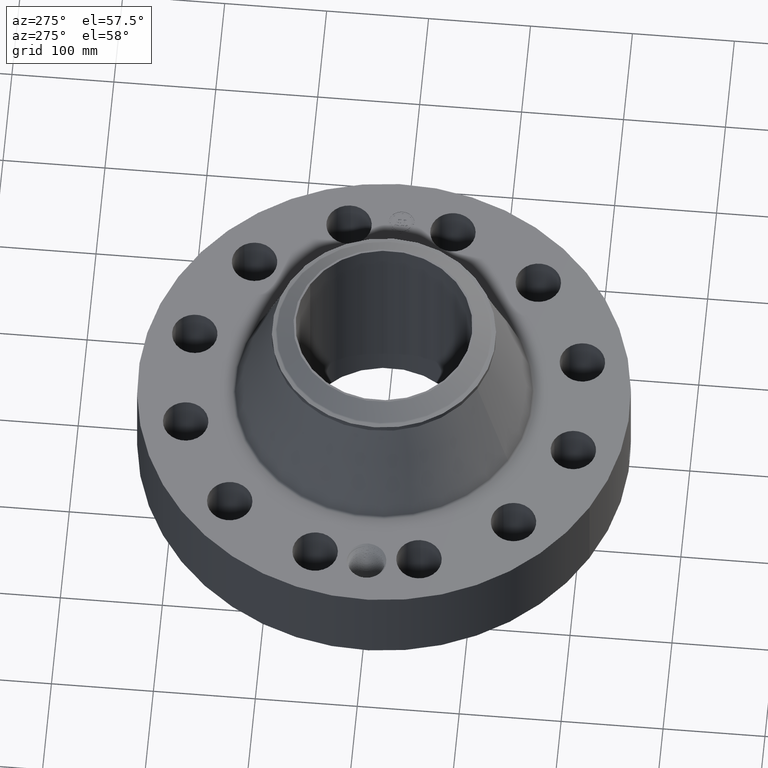
[diagram: clean part render]
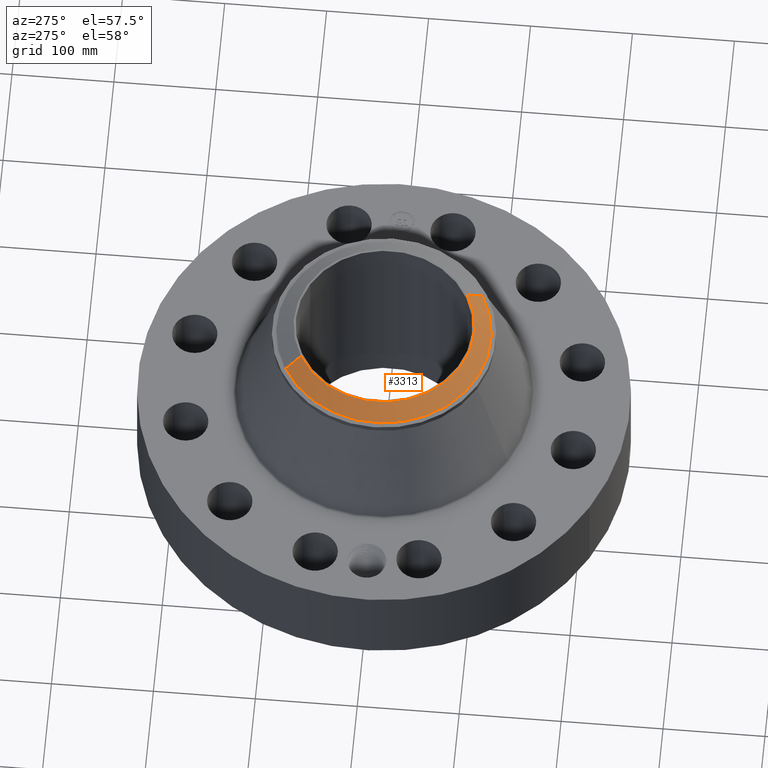
[diagram: same view with one face highlighted and labeled with its STEP entity id]
A machine part, auxiliary view. The second image highlights one B-rep face of the part: STEP entity #3313.
In plain terms, the highlighted conical surface has half-angle 52.5 deg.
Its self-contained STEP definition (entity closure, byte-faithful):
#2493=AXIS2_PLACEMENT_3D('Circle Axis2P3D',#2491,#2492,$) ;
#3286=AXIS2_PLACEMENT_3D('Cone Axis2P3D',#3283,#3284,#3285) ;
#3297=AXIS2_PLACEMENT_3D('Circle Axis2P3D',#3295,#3296,$) ;
#2486=CARTESIAN_POINT('Vertex',(1.67091313967,-3.05858598622,8.63000000003)) ;
#2488=CARTESIAN_POINT('Vertex',(-1.67091313967,3.05858598622,8.63000000003)) ;
#2491=CARTESIAN_POINT('Axis2P3D Location',(0.,0.,8.63000000003)) ;
#3283=CARTESIAN_POINT('Axis2P3D Location',(0.,0.,8.63000000003)) ;
#3288=CARTESIAN_POINT('Line Origine',(-1.82585444222,3.34220413812,8.3820143726)) ;
#3292=CARTESIAN_POINT('Vertex',(-1.98079574477,3.62582229002,8.13402874516)) ;
#3295=CARTESIAN_POINT('Axis2P3D Location',(0.,0.,8.13402874516)) ;
#3299=CARTESIAN_POINT('Vertex',(1.98079574477,-3.62582229002,8.13402874516)) ;
#3302=CARTESIAN_POINT('Line Origine',(1.82585444222,-3.34220413812,8.3820143726)) ;
#2492=DIRECTION('Axis2P3D Direction',(0.,0.,-0.0393700787402)) ;
#3284=DIRECTION('Axis2P3D Direction',(-0.,-0.,-0.0393700787402)) ;
#3285=DIRECTION('Axis2P3D XDirection',(-0.0188750212049,0.0345504945626,0.)) ;
#3289=DIRECTION('Vector Direction',(-0.014974561121,0.02741075027,-0.023966985394)) ;
#3296=DIRECTION('Axis2P3D Direction',(0.,0.,-0.0393700787402)) ;
#3303=DIRECTION('Vector Direction',(0.014974561121,-0.02741075027,-0.023966985394)) ;
#3290=VECTOR('Line Direction',#3289,0.0393700787402) ;
#3304=VECTOR('Line Direction',#3303,0.0393700787402) ;
#3308=ORIENTED_EDGE('',*,*,#2495,.F.) ;
#3309=ORIENTED_EDGE('',*,*,#3294,.T.) ;
#3310=ORIENTED_EDGE('',*,*,#3301,.T.) ;
#3311=ORIENTED_EDGE('',*,*,#3306,.F.) ;
#3313=ADVANCED_FACE('PartBody',(#3312),#3287,.T.) ;
#2494=CIRCLE('generated circle',#2493,3.48524015749) ;
#3298=CIRCLE('generated circle',#3297,4.13160248104) ;
#3287=CONICAL_SURFACE('Cone',#3286,3.48524015749,0.916297857297) ;
#2495=EDGE_CURVE('',#2489,#2487,#2494,.F.) ;
#3294=EDGE_CURVE('',#2489,#3293,#3291,.T.) ;
#3301=EDGE_CURVE('',#3293,#3300,#3298,.F.) ;
#3306=EDGE_CURVE('',#2487,#3300,#3305,.T.) ;
#3307=EDGE_LOOP('',(#3308,#3309,#3310,#3311)) ;
#3312=FACE_OUTER_BOUND('',#3307,.T.) ;
#3291=LINE('Line',#3288,#3290) ;
#3305=LINE('Line',#3302,#3304) ;
#2487=VERTEX_POINT('',#2486) ;
#2489=VERTEX_POINT('',#2488) ;
#3293=VERTEX_POINT('',#3292) ;
#3300=VERTEX_POINT('',#3299) ;